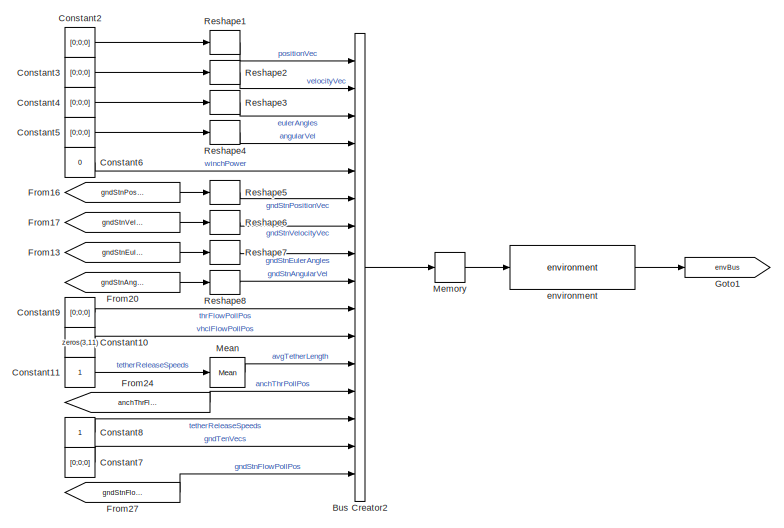
[diagram: root canvas - part 1/2, left side, full height]
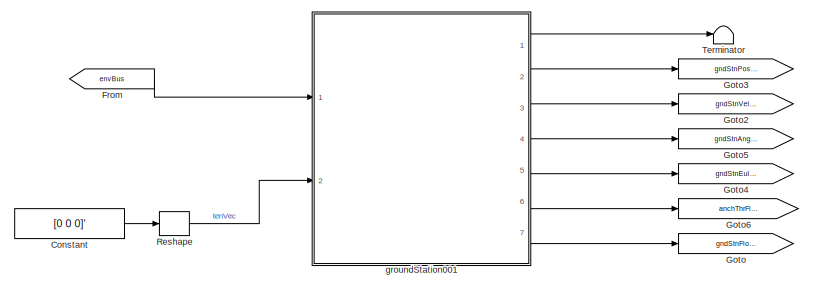
[diagram: root canvas - part 2/2, middle right region]
MODEL slx_90b08375440b
KIND model
CONFIG AbsTol = auto
CONFIG EnableMultiTasking = off
CONFIG FixedStep = auto
CONFIG MaxStep = auto
CONFIG MinStep = auto
CONFIG RelTol = 1e-3
CONFIG SampleTimeConstraint = Unconstrained
CONFIG Solver = VariableStepAuto
CONFIG SolverName = VariableStepAuto
CONFIG StartTime = 0.0
CONFIG StopTime = sim_time
BLOCK [BusCreator] Bus Creator2
  DisplayOption = bar
  InheritFromInputs = on
  Inputs = 16
  NonVirtualBus = on
  OutDataTypeStr = Bus: plantBus
  Ports = [16, 1]
BLOCK [Constant] Constant
  Value = [0 0 0]'
BLOCK [Constant] Constant10
  Value = zeros(3,11)
BLOCK [Constant] Constant11
BLOCK [Constant] Constant2
  Value = [0;0;0]
BLOCK [Constant] Constant3
  Value = [0;0;0]
BLOCK [Constant] Constant4
  Value = [0;0;0]
BLOCK [Constant] Constant5
  Value = [0;0;0]
BLOCK [Constant] Constant6
  Value = 0
BLOCK [Constant] Constant7
  Value = [0;0;0]
BLOCK [Constant] Constant8
BLOCK [Constant] Constant9
  Value = [0;0;0]
BLOCK [From] From
  GotoTag = envBus
BLOCK [From] From13
  GotoTag = gndStnEulAng
BLOCK [From] From16
  GotoTag = gndStnPosVec
BLOCK [From] From17
  GotoTag = gndStnVelVec
BLOCK [From] From20
  GotoTag = gndStnAngVel
BLOCK [From] From24
  GotoTag = anchThrFlowPollPositions
BLOCK [From] From27
  GotoTag = gndStnFlowPollPos
BLOCK [Goto] Goto
  GotoTag = gndStnFlowPollPos
BLOCK [Goto] Goto1
  GotoTag = envBus
BLOCK [Goto] Goto2
  GotoTag = gndStnVelVec
BLOCK [Goto] Goto3
  GotoTag = gndStnPosVec
BLOCK [Goto] Goto4
  GotoTag = gndStnEulAng
BLOCK [Goto] Goto5
  GotoTag = gndStnAngVel
BLOCK [Goto] Goto6
  GotoTag = anchThrFlowPollPositions
BLOCK [Reference] Mean  REF=dspstat3/Mean
  Ports = [1, 1]
  SourceBlock = dspstat3/Mean
  SourceProductBaseCode = DS
  SourceType = Mean
  UserDataPersistent = on
BLOCK [Memory] Memory
BLOCK [Reshape] Reshape
  OutputDimensionality = Column vector (2-D)
  Ports = [1, 1]
BLOCK [Reshape] Reshape1
  OutputDimensionality = Column vector (2-D)
  Ports = [1, 1]
BLOCK [Reshape] Reshape2
  OutputDimensionality = Column vector (2-D)
  Ports = [1, 1]
BLOCK [Reshape] Reshape3
  OutputDimensionality = Column vector (2-D)
  Ports = [1, 1]
BLOCK [Reshape] Reshape4
  OutputDimensionality = Column vector (2-D)
  Ports = [1, 1]
BLOCK [Reshape] Reshape5
  OutputDimensionality = Column vector (2-D)
  Ports = [1, 1]
BLOCK [Reshape] Reshape6
  OutputDimensionality = Column vector (2-D)
  Ports = [1, 1]
BLOCK [Reshape] Reshape7
  OutputDimensionality = Column vector (2-D)
  Ports = [1, 1]
BLOCK [Reshape] Reshape8
  OutputDimensionality = Column vector (2-D)
  Ports = [1, 1]
BLOCK [Terminator] Terminator
BLOCK [Reference] environment  REF=environment_cl/environment  (lib defined in slx_47dae840ee41)
  Ports = [1, 1]
  SourceBlock = environment_cl/environment
  SourceType = SubSystem
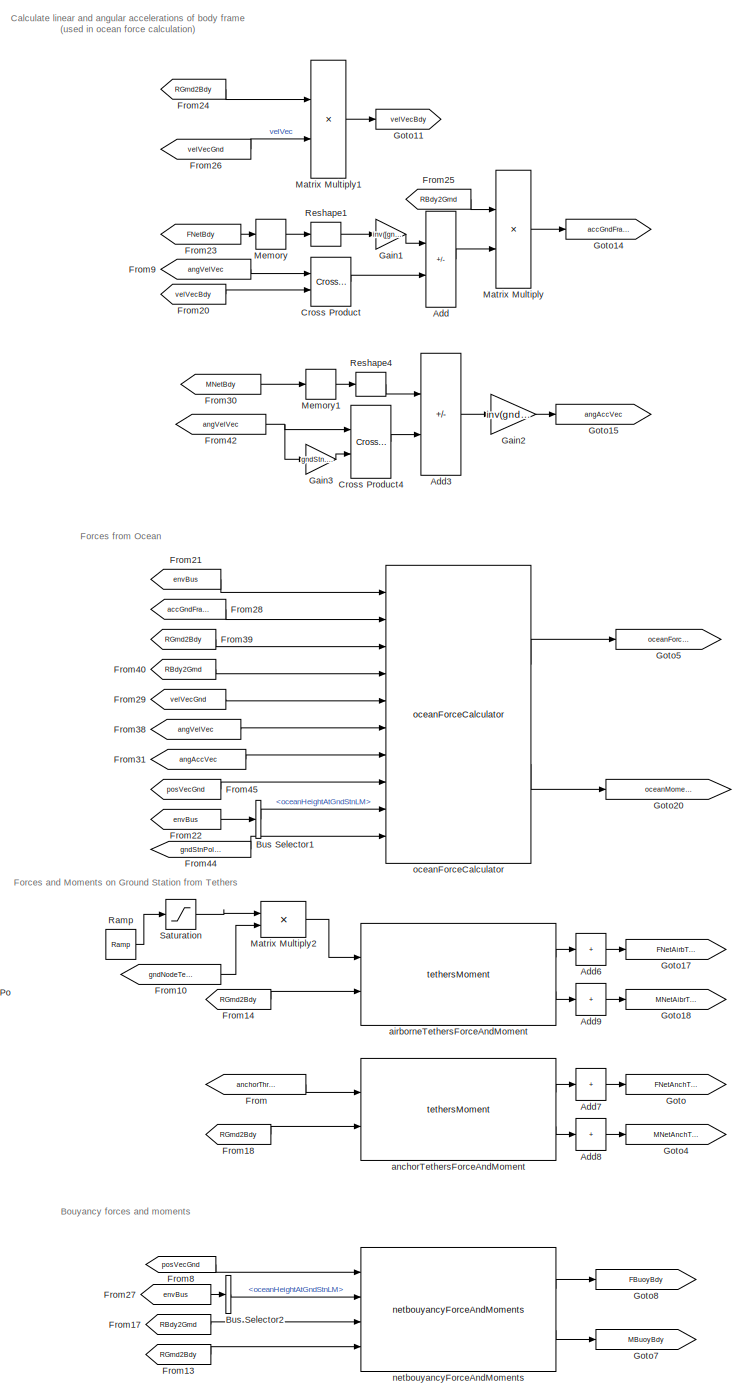
[diagram: groundStation001 - part 1/4, center side, full height]
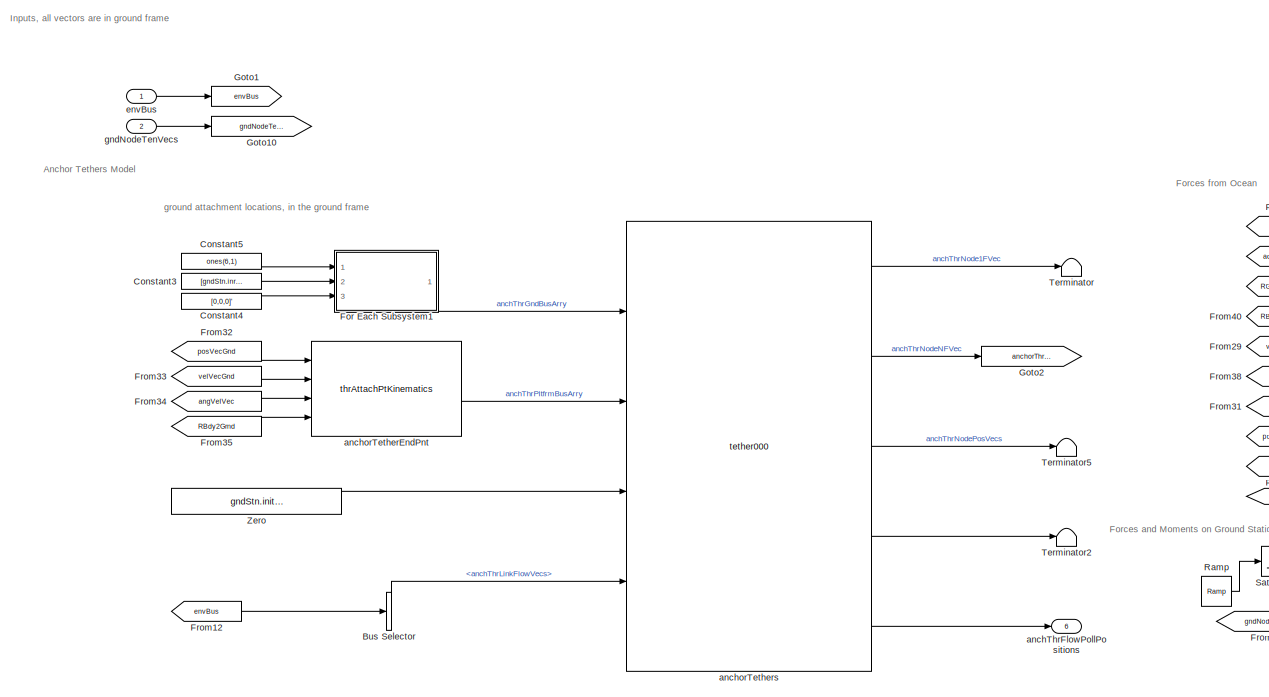
[diagram: groundStation001 - part 2/4, middle left region]
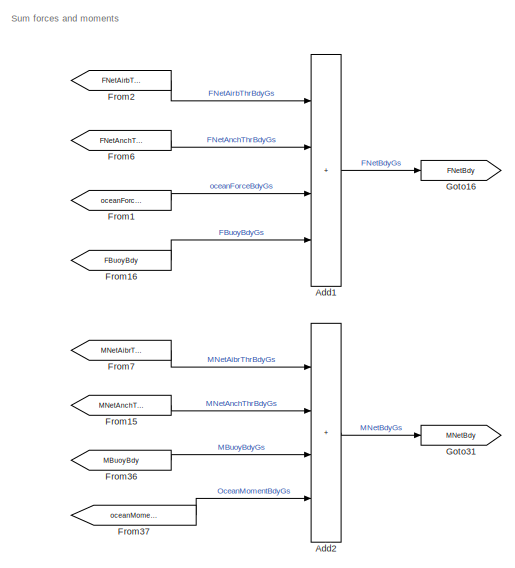
[diagram: groundStation001 - part 3/4, central region]
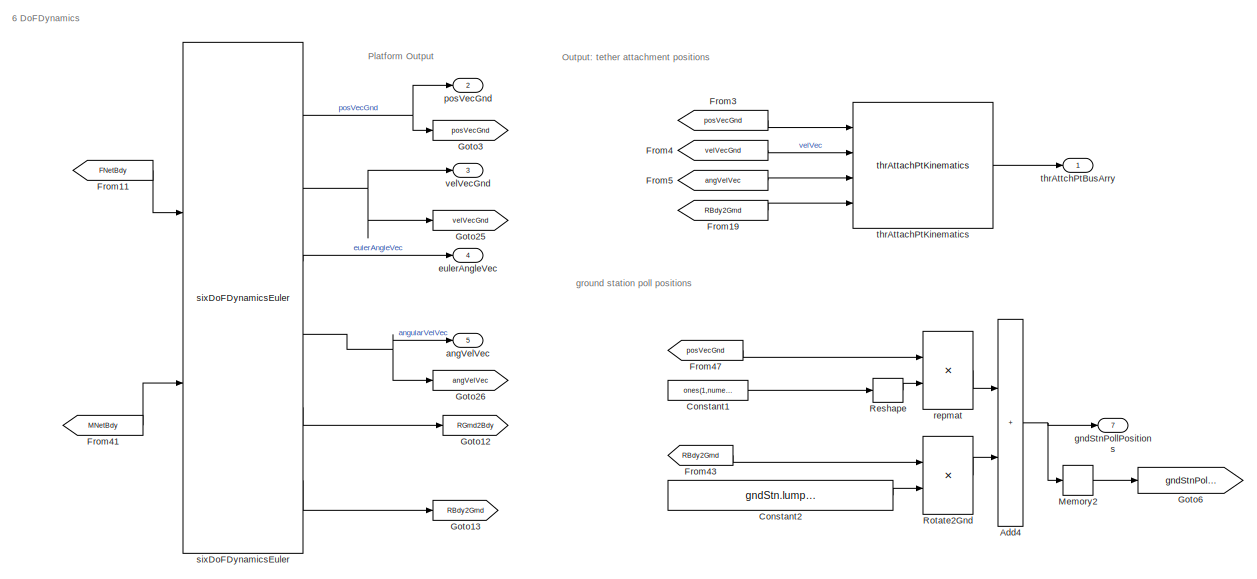
[diagram: groundStation001 - part 4/4, middle right region]
BLOCK [SubSystem] groundStation001
  AncestorBlock = groundStation001_cl/groundStation001
  Ports = [2, 7]
  RequestExecContextInheritance = off
  VariantControl = VSS_groundStation_groundStation001
BLOCK [Sum] groundStation001/Add
  IconShape = rectangular
  Inputs = +-
  Ports = [2, 1]
BLOCK [Sum] groundStation001/Add1
  IconShape = rectangular
  Inputs = ++++
  Ports = [4, 1]
BLOCK [Sum] groundStation001/Add2
  IconShape = rectangular
  Inputs = ++++
  Ports = [4, 1]
BLOCK [Sum] groundStation001/Add3
  IconShape = rectangular
  Inputs = +-
  Ports = [2, 1]
BLOCK [Sum] groundStation001/Add4
  IconShape = rectangular
  Ports = [2, 1]
BLOCK [Sum] groundStation001/Add6
  CollapseDim = 2
  CollapseMode = Specified dimension
  IconShape = rectangular
  Inputs = +
  Ports = [1, 1]
BLOCK [Sum] groundStation001/Add7
  CollapseDim = 2
  CollapseMode = Specified dimension
  IconShape = rectangular
  Inputs = +
  Ports = [1, 1]
BLOCK [Sum] groundStation001/Add8
  CollapseDim = 2
  CollapseMode = Specified dimension
  IconShape = rectangular
  Inputs = +
  Ports = [1, 1]
BLOCK [Sum] groundStation001/Add9
  CollapseDim = 2
  CollapseMode = Specified dimension
  IconShape = rectangular
  Inputs = +
  Ports = [1, 1]
BLOCK [BusSelector] groundStation001/Bus Selector
  OutputSignals = anchThrLinkFlowVecs
  Ports = [1, 1]
BLOCK [BusSelector] groundStation001/Bus Selector1
  OutputSignals = oceanHeightAtGndStnLM
  Ports = [1, 1]
BLOCK [BusSelector] groundStation001/Bus Selector2
  OutputSignals = oceanHeightAtGndStnLM
  Ports = [1, 1]
BLOCK [Constant] groundStation001/Constant1
  Value = ones(1,numel(gndStn.lumpedMassPositionMatrixBdy.Value)/3)
BLOCK [Constant] groundStation001/Constant2
  Value = gndStn.lumpedMassPositionMatrixBdy.Value
BLOCK [Constant] groundStation001/Constant3
  Value = [gndStn.inrThrAttchPt1.posVec.Value,gndStn.inrThrAttchPt2.posVec.Value,gndStn.inrThrAttchPt3.posVec.Value,gndStn.inrThrAttchPt4.posVec.Value,gndStn.inrThrAttchPt5.posVec.Value,gndStn.inrThrAttchPt6.posVec.Value]
BLOCK [Constant] groundStation001/Constant4
  Value = [0,0,0]'
BLOCK [Constant] groundStation001/Constant5
  Value = ones(6,1)
  VectorParams1D = off
BLOCK [Reference] groundStation001/Cross Product  REF=vrlib/Utilities/Cross Product
  Ports = [2, 1]
  SourceBlock = vrlib/Utilities/Cross Product
  SourceProductBaseCode = SL
  SourceType = Cross Product
BLOCK [Reference] groundStation001/Cross Product4  REF=vrlib/Utilities/Cross Product
  Ports = [2, 1]
  SourceBlock = vrlib/Utilities/Cross Product
  SourceProductBaseCode = SL
  SourceType = Cross Product
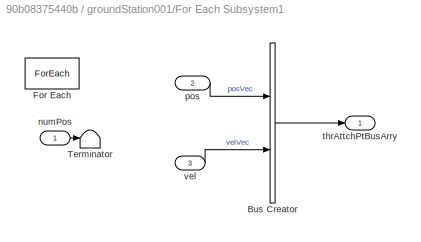
BLOCK [SubSystem] groundStation001/For Each Subsystem1
  Ports = [3, 1]
  RequestExecContextInheritance = off
  TreatAsAtomicUnit = on
BLOCK [BusCreator] groundStation001/For Each Subsystem1/Bus Creator
  DisplayOption = bar
  InheritFromInputs = on
  Inputs = 2
  NonVirtualBus = on
  OutDataTypeStr = Bus: thrAttachPtKinematicsBus
  Ports = [2, 1]
BLOCK [ForEach] groundStation001/For Each Subsystem1/For Each
  DisableCoverage = on
  Ports = []
BLOCK [Terminator] groundStation001/For Each Subsystem1/Terminator
BLOCK [Inport] groundStation001/For Each Subsystem1/numPos
  Partition = on
  PartitionDimension = 1
  PartitionOffset = 0
  PartitionWidth = 1
BLOCK [Inport] groundStation001/For Each Subsystem1/pos
  Partition = on
  PartitionDimension = 2
  PartitionOffset = 0
  PartitionWidth = 1
  Port = 2
BLOCK [Outport] groundStation001/For Each Subsystem1/thrAttchPtBusArry
  ConcatenationDimension = 1
  VectorParamsAs1DForOutWhenUnconnected = off
BLOCK [Inport] groundStation001/For Each Subsystem1/vel
  Port = 3
BLOCK [From] groundStation001/From
  GotoTag = anchorThrBus
BLOCK [From] groundStation001/From1
  GotoTag = oceanForceBdy
BLOCK [From] groundStation001/From10
  GotoTag = gndNodeTenVecs
BLOCK [From] groundStation001/From11
  GotoTag = FNetBdy
BLOCK [From] groundStation001/From12
  GotoTag = envBus
BLOCK [From] groundStation001/From13
  GotoTag = RGrnd2Bdy
BLOCK [From] groundStation001/From14
  GotoTag = RGrnd2Bdy
BLOCK [From] groundStation001/From15
  GotoTag = MNetAnchThrBdy
BLOCK [From] groundStation001/From16
  GotoTag = FBuoyBdy
BLOCK [From] groundStation001/From17
  GotoTag = RBdy2Grnd
BLOCK [From] groundStation001/From18
  GotoTag = RGrnd2Bdy
BLOCK [From] groundStation001/From19
  GotoTag = RBdy2Grnd
BLOCK [From] groundStation001/From2
  GotoTag = FNetAirbThrBdy
BLOCK [From] groundStation001/From20
  GotoTag = velVecBdy
BLOCK [From] groundStation001/From21
  GotoTag = envBus
BLOCK [From] groundStation001/From22
  GotoTag = envBus
BLOCK [From] groundStation001/From23
  GotoTag = FNetBdy
BLOCK [From] groundStation001/From24
  GotoTag = RGrnd2Bdy
BLOCK [From] groundStation001/From25
  GotoTag = RBdy2Grnd
BLOCK [From] groundStation001/From26
  GotoTag = velVecGnd
BLOCK [From] groundStation001/From27
  GotoTag = envBus
BLOCK [From] groundStation001/From28
  GotoTag = accGndFrame
BLOCK [From] groundStation001/From29
  GotoTag = velVecGnd
BLOCK [From] groundStation001/From3
  GotoTag = posVecGnd
BLOCK [From] groundStation001/From30
  GotoTag = MNetBdy
BLOCK [From] groundStation001/From31
  GotoTag = angAccVec
BLOCK [From] groundStation001/From32
  GotoTag = posVecGnd
BLOCK [From] groundStation001/From33
  GotoTag = velVecGnd
BLOCK [From] groundStation001/From34
  GotoTag = angVelVec
BLOCK [From] groundStation001/From35
  GotoTag = RBdy2Grnd
BLOCK [From] groundStation001/From36
  GotoTag = MBuoyBdy
BLOCK [From] groundStation001/From37
  GotoTag = oceanMomentBdy
BLOCK [From] groundStation001/From38
  GotoTag = angVelVec
BLOCK [From] groundStation001/From39
  GotoTag = RGrnd2Bdy
BLOCK [From] groundStation001/From4
  GotoTag = velVecGnd
BLOCK [From] groundStation001/From40
  GotoTag = RBdy2Grnd
BLOCK [From] groundStation001/From41
  GotoTag = MNetBdy
BLOCK [From] groundStation001/From42
  GotoTag = angVelVec
BLOCK [From] groundStation001/From43
  GotoTag = RBdy2Grnd
BLOCK [From] groundStation001/From44
  GotoTag = gndStnPollPosLag
BLOCK [From] groundStation001/From45
  GotoTag = posVecGnd
BLOCK [From] groundStation001/From47
  GotoTag = posVecGnd
BLOCK [From] groundStation001/From5
  GotoTag = angVelVec
BLOCK [From] groundStation001/From6
  GotoTag = FNetAnchThrBdy
BLOCK [From] groundStation001/From7
  GotoTag = MNetAibrThrBdy
BLOCK [From] groundStation001/From8
  GotoTag = posVecGnd
BLOCK [From] groundStation001/From9
  GotoTag = angVelVec
BLOCK [Gain] groundStation001/Gain1
  Gain = inv([gndStn.mass.Value,0,0;0,gndStn.mass.Value,0;0,0,gndStn.mass.Value])
  Multiplication = Matrix(K*u)
BLOCK [Gain] groundStation001/Gain2
  Gain = inv(gndStn.inertia.Value)
  Multiplication = Matrix(K*u)
BLOCK [Gain] groundStation001/Gain3
  Gain = gndStn.inertia.Value
  Multiplication = Matrix(K*u)
BLOCK [Goto] groundStation001/Goto
  GotoTag = FNetAnchThrBdy
BLOCK [Goto] groundStation001/Goto1
  GotoTag = envBus
BLOCK [Goto] groundStation001/Goto10
  GotoTag = gndNodeTenVecs
BLOCK [Goto] groundStation001/Goto11
  GotoTag = velVecBdy
BLOCK [Goto] groundStation001/Goto12
  GotoTag = RGrnd2Bdy
BLOCK [Goto] groundStation001/Goto13
  GotoTag = RBdy2Grnd
BLOCK [Goto] groundStation001/Goto14
  GotoTag = accGndFrame
BLOCK [Goto] groundStation001/Goto15
  GotoTag = angAccVec
BLOCK [Goto] groundStation001/Goto16
  GotoTag = FNetBdy
BLOCK [Goto] groundStation001/Goto17
  GotoTag = FNetAirbThrBdy
BLOCK [Goto] groundStation001/Goto18
  GotoTag = MNetAibrThrBdy
BLOCK [Goto] groundStation001/Goto2
  GotoTag = anchorThrBus
BLOCK [Goto] groundStation001/Goto20
  GotoTag = oceanMomentBdy
BLOCK [Goto] groundStation001/Goto25
  GotoTag = velVecGnd
BLOCK [Goto] groundStation001/Goto26
  GotoTag = angVelVec
BLOCK [Goto] groundStation001/Goto3
  GotoTag = posVecGnd
BLOCK [Goto] groundStation001/Goto31
  GotoTag = MNetBdy
BLOCK [Goto] groundStation001/Goto4
  GotoTag = MNetAnchThrBdy
BLOCK [Goto] groundStation001/Goto5
  GotoTag = oceanForceBdy
BLOCK [Goto] groundStation001/Goto6
  GotoTag = gndStnPollPosLag
BLOCK [Goto] groundStation001/Goto7
  GotoTag = MBuoyBdy
BLOCK [Goto] groundStation001/Goto8
  GotoTag = FBuoyBdy
BLOCK [Product] groundStation001/Matrix Multiply
  Multiplication = Matrix(*)
  Ports = [2, 1]
BLOCK [Product] groundStation001/Matrix Multiply1
  Multiplication = Matrix(*)
  Ports = [2, 1]
BLOCK [Product] groundStation001/Matrix Multiply2
  Ports = [2, 1]
BLOCK [Memory] groundStation001/Memory
BLOCK [Memory] groundStation001/Memory1
BLOCK [Memory] groundStation001/Memory2
  InitialCondition = gndStn.lumpedMassPositionMatrixBdy.Value
BLOCK [Reference] groundStation001/Ramp  REF=simulink/Sources/Ramp
  Ports = [0, 1]
  SourceBlock = simulink/Sources/Ramp
  SourceProductBaseCode = SL
  SourceType = Ramp
BLOCK [Reshape] groundStation001/Reshape
  OutputDimensionality = Row vector (2-D)
  Ports = [1, 1]
BLOCK [Reshape] groundStation001/Reshape1
  OutputDimensionality = Column vector (2-D)
  Ports = [1, 1]
BLOCK [Reshape] groundStation001/Reshape4
  OutputDimensionality = Column vector (2-D)
  Ports = [1, 1]
BLOCK [Product] groundStation001/Rotate2Gnd
  Multiplication = Matrix(*)
  Ports = [2, 1]
BLOCK [Saturate] groundStation001/Saturation
BLOCK [Terminator] groundStation001/Terminator
BLOCK [Terminator] groundStation001/Terminator2
BLOCK [Terminator] groundStation001/Terminator5
BLOCK [Constant] groundStation001/Zero
  OutDataTypeStr = Inherit: Inherit via back propagation
  Value = gndStn.initAnchTetherLength.Value
BLOCK [Reference] groundStation001/airborneTethersForceAndMoment  REF=tethersMoment_cl/tethersMoment
  Ports = [2, 2]
  SourceBlock = tethersMoment_cl/tethersMoment
BLOCK [Outport] groundStation001/anchThrFlowPollPositions
  Port = 6
  VectorParamsAs1DForOutWhenUnconnected = off
BLOCK [Reference] groundStation001/anchorTetherEndPnt  REF=thrAttachPtKinematics_ul/thrAttachPtKinematics
  Ports = [4, 1]
  SourceBlock = thrAttachPtKinematics_ul/thrAttachPtKinematics
BLOCK [Reference] groundStation001/anchorTethers  REF=tether000_cl/tether000
  Ports = [4, 5]
  SourceBlock = tether000_cl/tether000
BLOCK [Reference] groundStation001/anchorTethersForceAndMoment  REF=tethersMoment_cl/tethersMoment
  Ports = [2, 2]
  SourceBlock = tethersMoment_cl/tethersMoment
BLOCK [Outport] groundStation001/angVelVec
  Port = 5
  VectorParamsAs1DForOutWhenUnconnected = off
BLOCK [Inport] groundStation001/envBus
  OutDataTypeStr = Bus: envBus
BLOCK [Outport] groundStation001/eulerAngleVec
  Port = 4
  VectorParamsAs1DForOutWhenUnconnected = off
BLOCK [Inport] groundStation001/gndNodeTenVecs
  Port = 2
BLOCK [Outport] groundStation001/gndStnPollPositions
  Port = 7
  VectorParamsAs1DForOutWhenUnconnected = off
BLOCK [Reference] groundStation001/netbouyancyForceAndMoments  REF=bouyancyCalculator_ul/netbouyancyForceAndMoments
  Ports = [4, 2]
  SourceBlock = bouyancyCalculator_ul/netbouyancyForceAndMoments
  SourceType = SubSystem
BLOCK [Reference] groundStation001/oceanForceCalculator  REF=oceanForceCalculator_ul/oceanForceCalculator
  Ports = [10, 2]
  SourceBlock = oceanForceCalculator_ul/oceanForceCalculator
BLOCK [Outport] groundStation001/posVecGnd
  Port = 2
  VectorParamsAs1DForOutWhenUnconnected = off
BLOCK [Product] groundStation001/repmat
  Multiplication = Matrix(*)
  Ports = [2, 1]
BLOCK [Reference] groundStation001/sixDoFDynamicsEuler  REF=sixDoFDynamicsEuler_ul/sixDoFDynamicsEuler
  Ports = [2, 6]
  SourceBlock = sixDoFDynamicsEuler_ul/sixDoFDynamicsEuler
BLOCK [Reference] groundStation001/thrAttachPtKinematics  REF=thrAttachPtKinematics_ul/thrAttachPtKinematics
  Ports = [4, 1]
  SourceBlock = thrAttachPtKinematics_ul/thrAttachPtKinematics
BLOCK [Outport] groundStation001/thrAttchPtBusArry
  VectorParamsAs1DForOutWhenUnconnected = off
BLOCK [Outport] groundStation001/velVecGnd
  Port = 3
  VectorParamsAs1DForOutWhenUnconnected = off
ANNOTATION groundStation001: 6 DoFDynamics
ANNOTATION groundStation001: Anchor Tethers Model
ANNOTATION groundStation001: Bouyancy forces and moments
ANNOTATION groundStation001: Calculate linear and angular accelerations of body frame (used in ocean force calculation)
ANNOTATION groundStation001: Forces and Moments on Ground Station from Tethers
ANNOTATION groundStation001: Forces from Ocean
ANNOTATION groundStation001: Inputs, all vectors are in ground frame
ANNOTATION groundStation001: Output: tether attachment positions
ANNOTATION groundStation001: Platform Output
ANNOTATION groundStation001: Sum forces and moments
ANNOTATION groundStation001: ground attachment locations, in the ground frame
ANNOTATION groundStation001: ground station poll positions
LINE Bus Creator2:1 -> Memory:1
LINE Constant10:1 -> Bus Creator2:11
LINE Constant11:1 -> Mean:1
LINE Constant2:1 -> Reshape1:1
LINE Constant3:1 -> Reshape2:1
LINE Constant4:1 -> Reshape3:1
LINE Constant5:1 -> Reshape4:1
LINE Constant6:1 -> Bus Creator2:5
LINE Constant7:1 -> Bus Creator2:15
LINE Constant8:1 -> Bus Creator2:14
LINE Constant9:1 -> Bus Creator2:10
LINE Constant:1 -> Reshape:1
LINE From13:1 -> Reshape7:1
LINE From16:1 -> Reshape5:1
LINE From17:1 -> Reshape6:1
LINE From20:1 -> Reshape8:1
LINE From24:1 -> Bus Creator2:13
LINE From27:1 -> Bus Creator2:16
LINE From:1 -> groundStation001:1
LINE Mean:1 -> Bus Creator2:12
LINE Memory:1 -> environment:1
LINE Reshape1:1 -> Bus Creator2:1
LINE Reshape2:1 -> Bus Creator2:2
LINE Reshape3:1 -> Bus Creator2:3
LINE Reshape4:1 -> Bus Creator2:4
LINE Reshape5:1 -> Bus Creator2:6
LINE Reshape6:1 -> Bus Creator2:7
LINE Reshape7:1 -> Bus Creator2:8
LINE Reshape8:1 -> Bus Creator2:9
LINE Reshape:1 -> groundStation001:2
LINE environment:1 -> Goto1:1
LINE groundStation001:1 -> Terminator:1
LINE groundStation001:2 -> Goto3:1
LINE groundStation001:3 -> Goto2:1
LINE groundStation001:4 -> Goto5:1
LINE groundStation001:5 -> Goto4:1
LINE groundStation001:6 -> Goto6:1
LINE groundStation001:7 -> Goto:1
